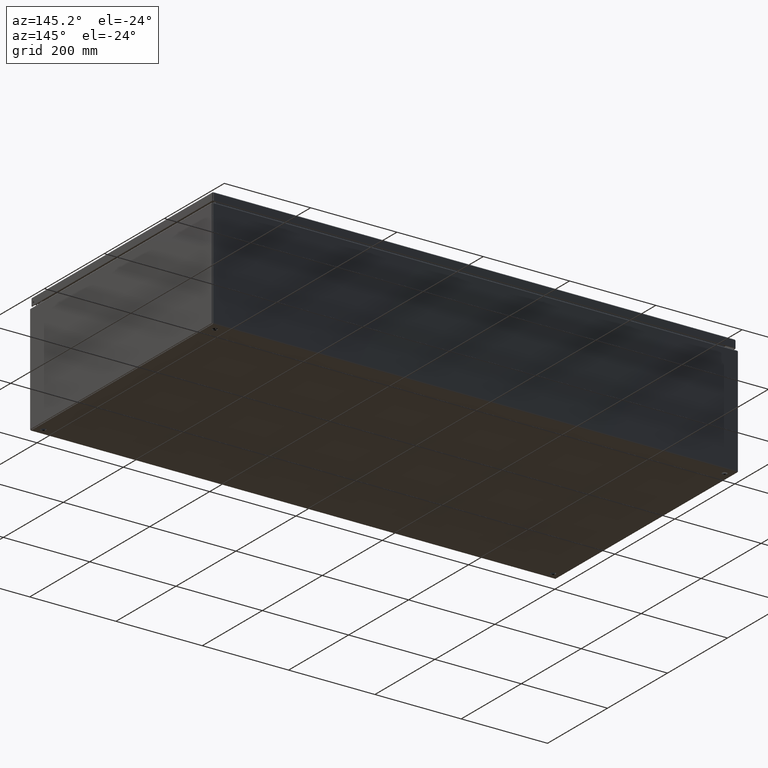
[diagram: clean part render]
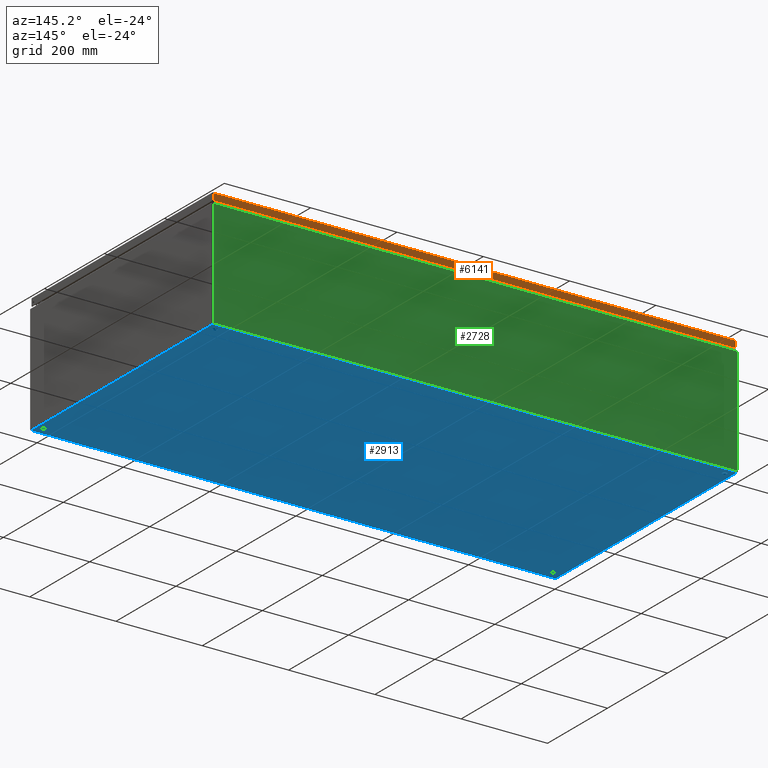
[diagram: same view with three faces highlighted in distinct colors, each labeled with its STEP entity id]
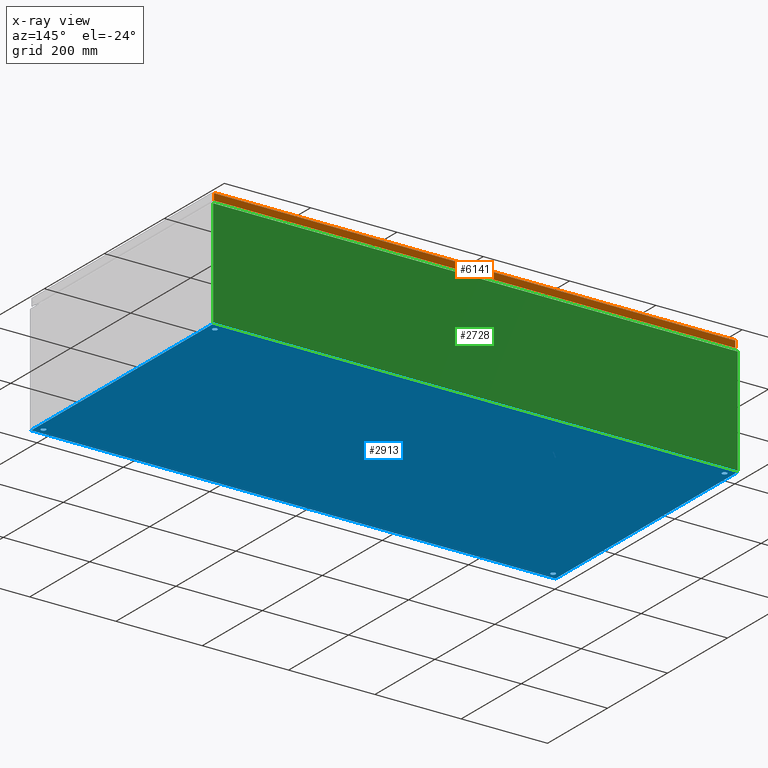
[diagram: x-ray of the same camera — body ghosted, the three highlighted faces saturated]
A machine part, auxiliary view with three faces highlighted in distinct colors.
The next image is the same camera in x-ray (body ghosted, the three faces saturated) — at least one of them is partly hidden behind the body in this view.
Their STEP definitions:

[orange] entity #6141 — the highlighted planar face has unit normal (0, -1, 0).
#5893=CARTESIAN_POINT('',(-5.741232E-015,47.664951456543960,0.105250000000009));
#5894=VERTEX_POINT('',#5893);
#5895=CARTESIAN_POINT('',(8.825912E-015,0.085048543456049,0.105249999999997));
#5896=VERTEX_POINT('',#5895);
#5897=CARTESIAN_POINT('',(-5.736094E-015,47.664951456543960,0.105250000000000));
#5898=DIRECTION('',(0.0,-1.0,0.0));
#5899=VECTOR('',#5898,47.579902913087913);
#5900=LINE('',#5897,#5899);
#5901=EDGE_CURVE('',#5894,#5896,#5900,.T.);
#5979=CARTESIAN_POINT('',(8.648936E-015,0.085048543456047,0.729999999999997));
#5980=VERTEX_POINT('',#5979);
#5981=CARTESIAN_POINT('',(8.627081E-015,0.085048543456047,0.729999999999997));
#5982=DIRECTION('',(0.0,0.0,-1.0));
#5983=VECTOR('',#5982,0.624750000000000);
#5984=LINE('',#5981,#5983);
#5985=EDGE_CURVE('',#5980,#5896,#5984,.T.);
#6094=CARTESIAN_POINT('',(-5.918208E-015,47.664951456543953,0.730000000000009));
#6095=VERTEX_POINT('',#6094);
#6096=CARTESIAN_POINT('',(-5.752160E-015,47.664951456543953,0.105250000000009));
#6097=DIRECTION('',(0.0,0.0,1.0));
#6098=VECTOR('',#6097,0.624750000000000);
#6099=LINE('',#6096,#6098);
#6100=EDGE_CURVE('',#5894,#6095,#6099,.T.);
#6118=CARTESIAN_POINT('',(-5.929136E-015,47.664951456543953,0.730000000000009));
#6119=DIRECTION('',(0.0,-1.0,0.0));
#6120=VECTOR('',#6119,47.579902913087906);
#6121=LINE('',#6118,#6120);
#6122=EDGE_CURVE('',#6095,#5980,#6121,.T.);
#6130=CARTESIAN_POINT('',(1.468338E-015,23.875000000000004,0.366485738553101));
#6131=DIRECTION('',(1.0,0.0,0.0));
#6132=DIRECTION('',(0.0,0.0,-1.0));
#6133=AXIS2_PLACEMENT_3D('',#6130,#6131,#6132);
#6134=PLANE('',#6133);
#6135=ORIENTED_EDGE('',*,*,#5901,.T.);
#6136=ORIENTED_EDGE('',*,*,#5985,.F.);
#6137=ORIENTED_EDGE('',*,*,#6122,.F.);
#6138=ORIENTED_EDGE('',*,*,#6100,.F.);
#6139=EDGE_LOOP('',(#6135,#6136,#6137,#6138));
#6140=FACE_OUTER_BOUND('',#6139,.T.);
#6141=ADVANCED_FACE('',(#6140),#6134,.F.);

[blue] entity #2913 — the highlighted planar face has unit normal (0, 0, 1).
#135=CARTESIAN_POINT('',(0.456999999999988,0.750000000000002,0.0));
#136=VERTEX_POINT('',#135);
#137=CARTESIAN_POINT('',(0.675999999999988,0.750000000000002,0.0));
#138=DIRECTION('',(0.0,0.0,1.0));
#139=DIRECTION('',(1.0,0.0,0.0));
#140=AXIS2_PLACEMENT_3D('',#137,#138,#139);
#141=CIRCLE('',#140,0.219000000000000);
#142=EDGE_CURVE('',#136,#136,#141,.T.);
#163=CARTESIAN_POINT('',(46.957000000000001,0.750000000000002,0.0));
#164=VERTEX_POINT('',#163);
#165=CARTESIAN_POINT('',(47.175999999999995,0.750000000000002,0.0));
#166=DIRECTION('',(0.0,0.0,1.0));
#167=DIRECTION('',(1.0,0.0,0.0));
#168=AXIS2_PLACEMENT_3D('',#165,#166,#167);
#169=CIRCLE('',#168,0.219000000000000);
#170=EDGE_CURVE('',#164,#164,#169,.T.);
#191=CARTESIAN_POINT('',(0.456999999999993,23.250000000000028,0.0));
#192=VERTEX_POINT('',#191);
#193=CARTESIAN_POINT('',(0.675999999999993,23.250000000000028,0.0));
#194=DIRECTION('',(0.0,0.0,1.0));
#195=DIRECTION('',(1.0,0.0,0.0));
#196=AXIS2_PLACEMENT_3D('',#193,#194,#195);
#197=CIRCLE('',#196,0.219000000000000);
#198=EDGE_CURVE('',#192,#192,#197,.T.);
#219=CARTESIAN_POINT('',(46.957000000000001,23.250000000000028,0.0));
#220=VERTEX_POINT('',#219);
#221=CARTESIAN_POINT('',(47.175999999999995,23.250000000000028,0.0));
#222=DIRECTION('',(0.0,0.0,1.0));
#223=DIRECTION('',(1.0,0.0,0.0));
#224=AXIS2_PLACEMENT_3D('',#221,#222,#223);
#225=CIRCLE('',#224,0.219000000000000);
#226=EDGE_CURVE('',#220,#220,#225,.T.);
#2640=CARTESIAN_POINT('',(47.851999999999997,23.894750000000002,-2.185478E-017));
#2641=VERTEX_POINT('',#2640);
#2649=CARTESIAN_POINT('',(-7.341728E-015,23.894750000000002,-2.185478E-017));
#2650=VERTEX_POINT('',#2649);
#2651=CARTESIAN_POINT('',(-7.105427E-015,23.894750000000002,0.0));
#2652=DIRECTION('',(1.0,0.0,0.0));
#2653=VECTOR('',#2652,47.852000000000011);
#2654=LINE('',#2651,#2653);
#2655=EDGE_CURVE('',#2650,#2641,#2654,.T.);
#2757=CARTESIAN_POINT('',(0.0,0.105250000000001,-2.185478E-017));
#2758=VERTEX_POINT('',#2757);
#2766=CARTESIAN_POINT('',(47.852000000000004,0.105250000000001,-2.185478E-017));
#2767=VERTEX_POINT('',#2766);
#2768=CARTESIAN_POINT('',(47.852000000000004,0.105250000000001,0.0));
#2769=DIRECTION('',(-1.0,0.0,0.0));
#2770=VECTOR('',#2769,47.852000000000004);
#2771=LINE('',#2768,#2770);
#2772=EDGE_CURVE('',#2767,#2758,#2771,.T.);
#2869=CARTESIAN_POINT('',(47.852000000000004,0.105250000000001,0.0));
#2870=DIRECTION('',(0.0,1.0,0.0));
#2871=VECTOR('',#2870,23.789500000000000);
#2872=LINE('',#2869,#2871);
#2873=EDGE_CURVE('',#2767,#2641,#2872,.T.);
#2885=CARTESIAN_POINT('',(23.925999999999991,12.0,0.0));
#2886=DIRECTION('',(0.0,0.0,1.0));
#2887=DIRECTION('',(1.0,0.0,0.0));
#2888=AXIS2_PLACEMENT_3D('',#2885,#2886,#2887);
#2889=PLANE('',#2888);
#2890=ORIENTED_EDGE('',*,*,#2772,.T.);
#2891=CARTESIAN_POINT('',(-7.315657E-015,23.894750000000002,0.0));
#2892=DIRECTION('',(0.0,-1.0,0.0));
#2893=VECTOR('',#2892,23.789500000000004);
#2894=LINE('',#2891,#2893);
#2895=EDGE_CURVE('',#2650,#2758,#2894,.T.);
#2896=ORIENTED_EDGE('',*,*,#2895,.F.);
#2897=ORIENTED_EDGE('',*,*,#2655,.T.);
#2898=ORIENTED_EDGE('',*,*,#2873,.F.);
#2899=EDGE_LOOP('',(#2890,#2896,#2897,#2898));
#2900=FACE_OUTER_BOUND('',#2899,.T.);
#2901=ORIENTED_EDGE('',*,*,#142,.T.);
#2902=EDGE_LOOP('',(#2901));
#2903=FACE_BOUND('',#2902,.T.);
#2904=ORIENTED_EDGE('',*,*,#170,.T.);
#2905=EDGE_LOOP('',(#2904));
#2906=FACE_BOUND('',#2905,.T.);
#2907=ORIENTED_EDGE('',*,*,#198,.T.);
#2908=EDGE_LOOP('',(#2907));
#2909=FACE_BOUND('',#2908,.T.);
#2910=ORIENTED_EDGE('',*,*,#226,.T.);
#2911=EDGE_LOOP('',(#2910));
#2912=FACE_BOUND('',#2911,.T.);
#2913=ADVANCED_FACE('',(#2900,#2903,#2906,#2909,#2912),#2889,.F.);

[green] entity #2728 — the highlighted planar face has unit normal (0, -1, -0).
#1821=CARTESIAN_POINT('',(-1.344023E-015,23.999999999999986,9.894750000000004));
#1822=VERTEX_POINT('',#1821);
#1969=CARTESIAN_POINT('',(47.852000000000004,24.0,9.894750000000004));
#1970=VERTEX_POINT('',#1969);
#1978=CARTESIAN_POINT('',(-1.776357E-015,23.999999999999986,9.894750000000011));
#1979=DIRECTION('',(1.0,0.0,0.0));
#1980=VECTOR('',#1979,47.852000000000004);
#1981=LINE('',#1978,#1980);
#1982=EDGE_CURVE('',#1822,#1970,#1981,.T.);
#2564=CARTESIAN_POINT('',(47.852000000000004,24.000000000000028,0.105249999999998));
#2565=VERTEX_POINT('',#2564);
#2572=CARTESIAN_POINT('',(47.852000000000004,24.000000000000028,0.105249999999998));
#2573=DIRECTION('',(0.0,0.0,1.0));
#2574=VECTOR('',#2573,9.789500000000007);
#2575=LINE('',#2572,#2574);
#2576=EDGE_CURVE('',#2565,#1970,#2575,.T.);
#2611=CARTESIAN_POINT('',(-2.740609E-015,24.000000000000011,0.105250000000001));
#2612=VERTEX_POINT('',#2611);
#2613=CARTESIAN_POINT('',(-2.740609E-015,24.000000000000846,9.894750000000006));
#2614=DIRECTION('',(0.0,0.0,-1.0));
#2615=VECTOR('',#2614,9.789500000000004);
#2616=LINE('',#2613,#2615);
#2617=EDGE_CURVE('',#1822,#2612,#2616,.T.);
#2634=CARTESIAN_POINT('',(47.852000000000004,24.000000000000021,0.105250000000001));
#2635=DIRECTION('',(-1.0,0.0,0.0));
#2636=VECTOR('',#2635,47.852000000000004);
#2637=LINE('',#2634,#2636);
#2638=EDGE_CURVE('',#2565,#2612,#2637,.T.);
#2717=CARTESIAN_POINT('',(23.925999999999991,24.000000000001986,-11.889732513612794));
#2718=DIRECTION('',(2.437439E-016,-1.0,-1.658967E-013));
#2719=DIRECTION('',(1.0,0.0,0.0));
#2720=AXIS2_PLACEMENT_3D('',#2717,#2718,#2719);
#2721=PLANE('',#2720);
#2722=ORIENTED_EDGE('',*,*,#1982,.T.);
#2723=ORIENTED_EDGE('',*,*,#2576,.F.);
#2724=ORIENTED_EDGE('',*,*,#2638,.T.);
#2725=ORIENTED_EDGE('',*,*,#2617,.F.);
#2726=EDGE_LOOP('',(#2722,#2723,#2724,#2725));
#2727=FACE_OUTER_BOUND('',#2726,.T.);
#2728=ADVANCED_FACE('',(#2727),#2721,.F.);